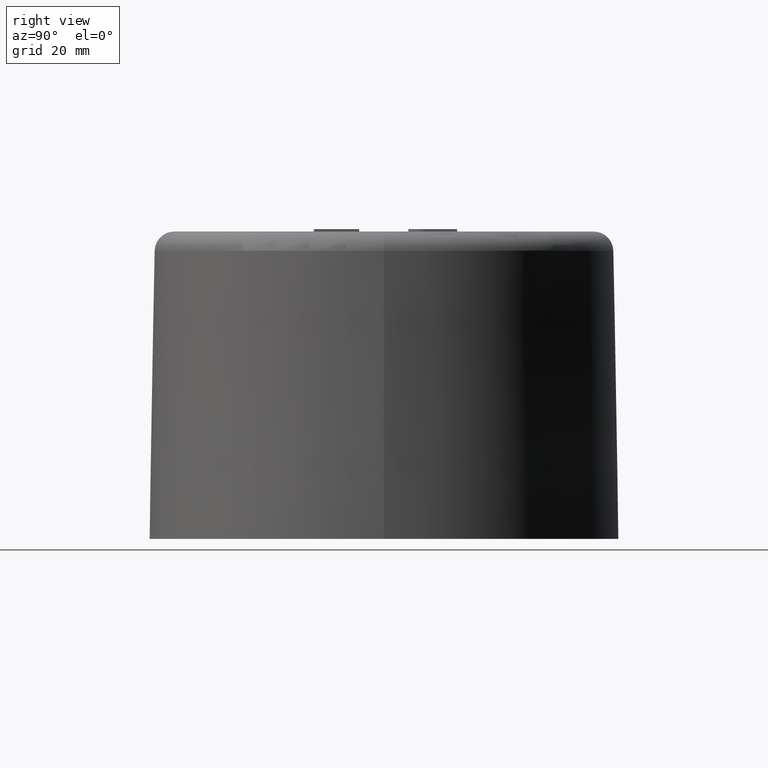
[diagram: clean part render]
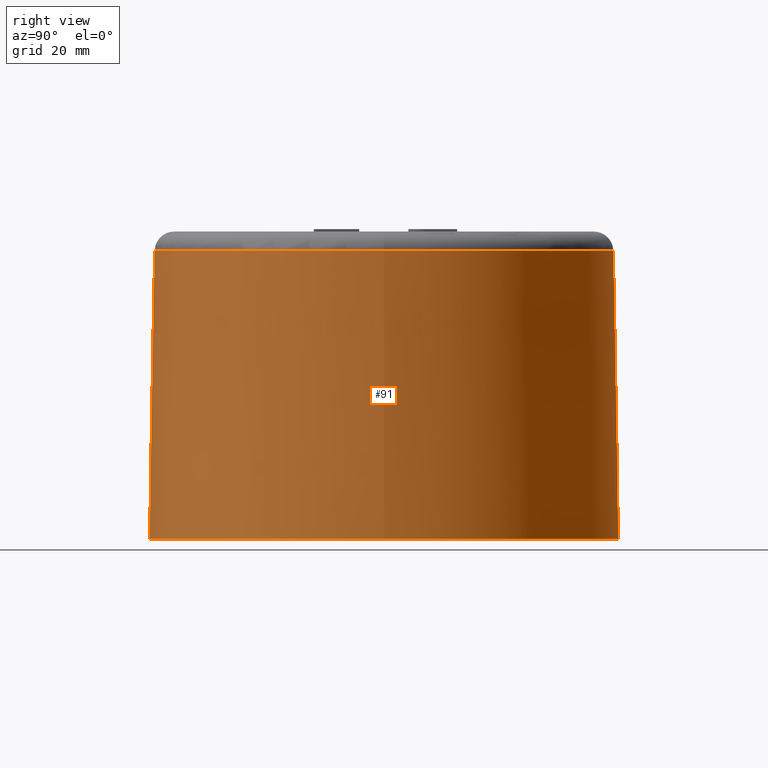
[diagram: same view with one face highlighted and labeled with its STEP entity id]
A machine part, right view. The second image highlights one B-rep face of the part: STEP entity #91.
In plain terms, the highlighted conical surface has half-angle 1 deg.
Its self-contained STEP definition (entity closure, byte-faithful):
#91 = ADVANCED_FACE( '', ( #188, #189 ), #190, .T. );
#188 = FACE_BOUND( '', #346, .T. );
#189 = FACE_OUTER_BOUND( '', #347, .T. );
#190 = CONICAL_SURFACE( '', #348, 48.0741089319783, 0.0174532925199433 );
#346 = EDGE_LOOP( '', ( #682 ) );
#347 = EDGE_LOOP( '', ( #683 ) );
#348 = AXIS2_PLACEMENT_3D( '', #684, #685, #686 );
#682 = ORIENTED_EDGE( '', *, *, #1125, .F. );
#683 = ORIENTED_EDGE( '', *, *, #1096, .T. );
#684 = CARTESIAN_POINT( '', ( 1.69948271264483E-030, 0.000000000000000, -2.77555756156289E-014 ) );
#685 = DIRECTION( '', ( 6.12303176911189E-017, 0.000000000000000, -1.00000000000000 ) );
#686 = DIRECTION( '', ( -1.00000000000000, 0.000000000000000, -6.12303176911189E-017 ) );
#1096 = EDGE_CURVE( '', #1280, #1280, #1281, .T. );
#1125 = EDGE_CURVE( '', #1329, #1329, #1330, .T. );
#1280 = VERTEX_POINT( '', #1644 );
#1281 = CIRCLE( '', #1645, 48.0741089319783 );
#1329 = VERTEX_POINT( '', #1849 );
#1330 = CIRCLE( '', #1850, 47.0430415696633 );
#1644 = CARTESIAN_POINT( '', ( 48.0741089319783, 0.000000000000000, -2.48119826530064E-014 ) );
#1645 = AXIS2_PLACEMENT_3D( '', #2093, #2094, #2095 );
#1849 = CARTESIAN_POINT( '', ( 47.0430415696633, 0.000000000000000, 59.0698096257491 ) );
#1850 = AXIS2_PLACEMENT_3D( '', #2109, #2110, #2111 );
#2093 = CARTESIAN_POINT( '', ( 1.69948271264483E-030, 0.000000000000000, -2.77555756156289E-014 ) );
#2094 = DIRECTION( '', ( -6.12303176911189E-017, 0.000000000000000, 1.00000000000000 ) );
#2095 = DIRECTION( '', ( 1.00000000000000, 0.000000000000000, 6.12303176911189E-017 ) );
#2109 = CARTESIAN_POINT( '', ( -3.61686320933853E-015, 0.000000000000000, 59.0698096257491 ) );
#2110 = DIRECTION( '', ( -6.12303176911189E-017, 0.000000000000000, 1.00000000000000 ) );
#2111 = DIRECTION( '', ( 1.00000000000000, 0.000000000000000, 6.12303176911189E-017 ) );